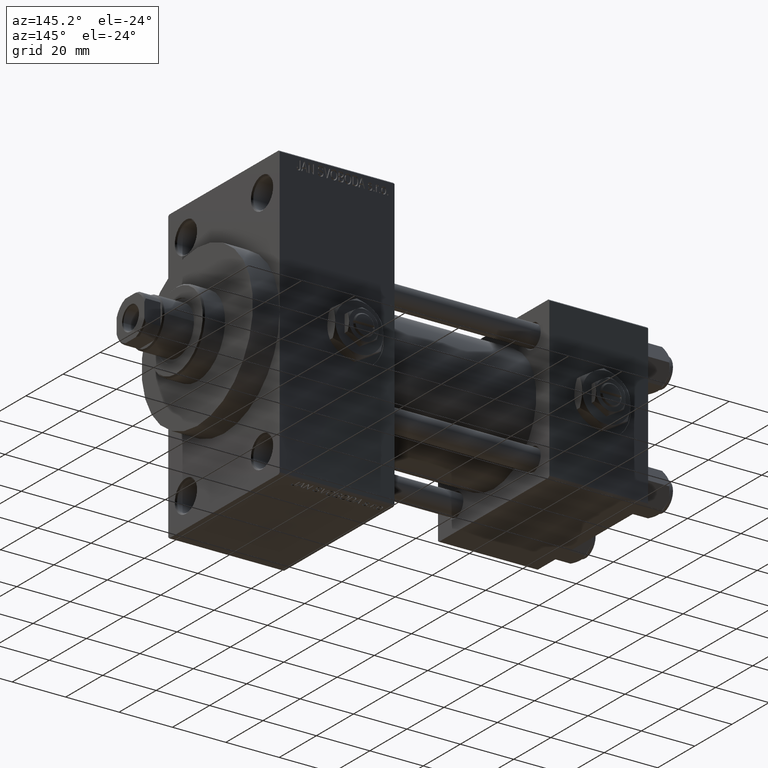
[diagram: clean part render]
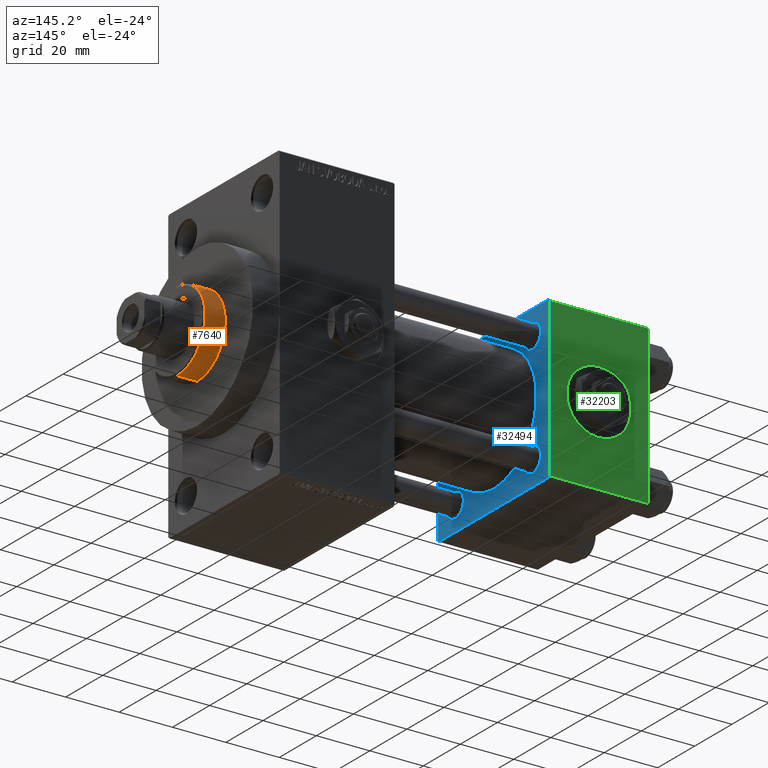
[diagram: same view with three faces highlighted in distinct colors, each labeled with its STEP entity id]
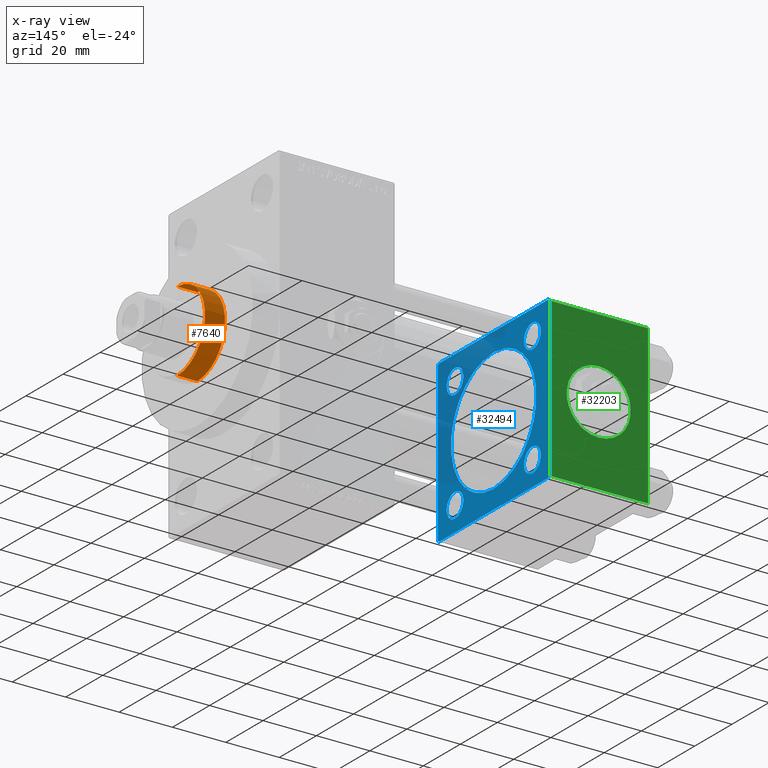
[diagram: x-ray of the same camera — body ghosted, the three highlighted faces saturated]
A machine part, auxiliary view with three faces highlighted in distinct colors.
The next image is the same camera in x-ray (body ghosted, the three faces saturated) — at least one of them is partly hidden behind the body in this view.
Their STEP definitions:

[orange] entity #7640 — the highlighted cylindrical surface (partial cylindrical patch) has radius 15 mm, axis along (-1, 0, 0).
#2689 = FACE_OUTER_BOUND ( 'NONE', #47525, .T. ) ;
#2847 = CARTESIAN_POINT ( 'NONE',  ( 0.000000000000000000, 0.000000000000000000, 43.25999999999999801 ) ) ;
#4192 = DIRECTION ( 'NONE',  ( -0.000000000000000000, -0.000000000000000000, -1.000000000000000000 ) ) ;
#4860 = DIRECTION ( 'NONE',  ( -0.000000000000000000, -0.000000000000000000, -1.000000000000000000 ) ) ;
#7640 = ADVANCED_FACE ( 'NONE', ( #2689 ), #14160, .T. ) ;
#7939 = CARTESIAN_POINT ( 'NONE',  ( 15.00000000000000000, 1.836970198721029589E-15, 51.25999999999999801 ) ) ;
#8867 = ORIENTED_EDGE ( 'NONE', *, *, #21718, .F. ) ;
#9592 = VERTEX_POINT ( 'NONE', #38286 ) ;
#12818 = CARTESIAN_POINT ( 'NONE',  ( -15.00000000000000000, 0.000000000000000000, 50.75999999999998380 ) ) ;
#14160 = CYLINDRICAL_SURFACE ( 'NONE', #29995, 15.00000000000000000 ) ;
#15252 = DIRECTION ( 'NONE',  ( 1.000000000000000000, 0.000000000000000000, 0.000000000000000000 ) ) ;
#17046 = CIRCLE ( 'NONE', #23383, 15.00000000000000000 ) ;
#17065 = CARTESIAN_POINT ( 'NONE',  ( 15.00000000000000000, 1.836970198721029589E-15, 43.25999999999999801 ) ) ;
#18290 = VERTEX_POINT ( 'NONE', #17065 ) ;
#20690 = CIRCLE ( 'NONE', #35817, 15.00000000000000000 ) ;
#21718 = EDGE_CURVE ( 'NONE', #9592, #18290, #30141, .T. ) ;
#23383 = AXIS2_PLACEMENT_3D ( 'NONE', #40250, #41691, #15252 ) ;
#25510 = EDGE_CURVE ( 'NONE', #9592, #45108, #17046, .T. ) ;
#25526 = DIRECTION ( 'NONE',  ( 1.000000000000000000, 0.000000000000000000, 0.000000000000000000 ) ) ;
#28149 = ORIENTED_EDGE ( 'NONE', *, *, #33801, .T. ) ;
#29837 = LINE ( 'NONE', #45037, #33924 ) ;
#29995 = AXIS2_PLACEMENT_3D ( 'NONE', #37551, #33818, #44567 ) ;
#30141 = LINE ( 'NONE', #7939, #40003 ) ;
#33801 = EDGE_CURVE ( 'NONE', #45108, #39523, #29837, .T. ) ;
#33818 = DIRECTION ( 'NONE',  ( -0.000000000000000000, -0.000000000000000000, -1.000000000000000000 ) ) ;
#33924 = VECTOR ( 'NONE', #4860, 1000.000000000000000 ) ;
#33981 = DIRECTION ( 'NONE',  ( 0.000000000000000000, 0.000000000000000000, 1.000000000000000000 ) ) ;
#35817 = AXIS2_PLACEMENT_3D ( 'NONE', #2847, #33981, #25526 ) ;
#35839 = CARTESIAN_POINT ( 'NONE',  ( -15.00000000000000000, 0.000000000000000000, 43.25999999999999801 ) ) ;
#37551 = CARTESIAN_POINT ( 'NONE',  ( 0.000000000000000000, 0.000000000000000000, 51.25999999999999801 ) ) ;
#38286 = CARTESIAN_POINT ( 'NONE',  ( 15.00000000000000000, 1.836970198721029589E-15, 50.75999999999998380 ) ) ;
#39523 = VERTEX_POINT ( 'NONE', #35839 ) ;
#40003 = VECTOR ( 'NONE', #4192, 1000.000000000000000 ) ;
#40250 = CARTESIAN_POINT ( 'NONE',  ( 0.000000000000000000, 0.000000000000000000, 50.75999999999998380 ) ) ;
#40664 = ORIENTED_EDGE ( 'NONE', *, *, #42337, .T. ) ;
#41691 = DIRECTION ( 'NONE',  ( 0.000000000000000000, 0.000000000000000000, -1.000000000000000000 ) ) ;
#42337 = EDGE_CURVE ( 'NONE', #39523, #18290, #20690, .T. ) ;
#42520 = ORIENTED_EDGE ( 'NONE', *, *, #25510, .T. ) ;
#44567 = DIRECTION ( 'NONE',  ( -1.000000000000000000, 0.000000000000000000, 0.000000000000000000 ) ) ;
#45037 = CARTESIAN_POINT ( 'NONE',  ( -15.00000000000000000, 0.000000000000000000, 51.25999999999999801 ) ) ;
#45108 = VERTEX_POINT ( 'NONE', #12818 ) ;
#47525 = EDGE_LOOP ( 'NONE', ( #8867, #42520, #28149, #40664 ) ) ;

[blue] entity #32494 — the highlighted planar face has unit normal (-1, 0, 0).
#115 = CARTESIAN_POINT ( 'NONE',  ( 37.00000000000000000, 20.84999999999999787, -16.35000000000002274 ) ) ;
#148 = DIRECTION ( 'NONE',  ( 0.000000000000000000, 0.000000000000000000, 1.000000000000000000 ) ) ;
#223 = CARTESIAN_POINT ( 'NONE',  ( 37.00000000000000000, 2.146024240737012665E-16, -23.00000000000000000 ) ) ;
#756 = EDGE_CURVE ( 'NONE', #43962, #44596, #33786, .T. ) ;
#965 = VECTOR ( 'NONE', #11256, 1000.000000000000000 ) ;
#1123 = DIRECTION ( 'NONE',  ( -1.000000000000000000, 0.000000000000000000, -0.000000000000000000 ) ) ;
#1128 = CARTESIAN_POINT ( 'NONE',  ( 37.00000000000000000, -29.50000000000000000, -30.00000000000000711 ) ) ;
#1289 = VECTOR ( 'NONE', #22043, 1000.000000000000000 ) ;
#1320 = VERTEX_POINT ( 'NONE', #30084 ) ;
#1482 = CARTESIAN_POINT ( 'NONE',  ( 37.00000000000000000, 29.99999999999999289, 30.00000000000000000 ) ) ;
#1561 = EDGE_CURVE ( 'NONE', #40483, #38965, #17988, .T. ) ;
#1702 = AXIS2_PLACEMENT_3D ( 'NONE', #23913, #5975, #36139 ) ;
#2046 = DIRECTION ( 'NONE',  ( 1.000000000000000000, -0.000000000000000000, 0.000000000000000000 ) ) ;
#2324 = EDGE_CURVE ( 'NONE', #44633, #44053, #35037, .T. ) ;
#2874 = CARTESIAN_POINT ( 'NONE',  ( 37.00000000000000000, 0.000000000000000000, 0.000000000000000000 ) ) ;
#4132 = CARTESIAN_POINT ( 'NONE',  ( 37.00000000000000000, -20.84999999999999076, -16.35000000000002629 ) ) ;
#4403 = VERTEX_POINT ( 'NONE', #30746 ) ;
#4413 = EDGE_LOOP ( 'NONE', ( #15514, #40244 ) ) ;
#4513 = VERTEX_POINT ( 'NONE', #10547 ) ;
#5229 = EDGE_CURVE ( 'NONE', #4403, #43962, #16844, .T. ) ;
#5380 = CARTESIAN_POINT ( 'NONE',  ( 37.00000000000000000, -29.50000000000001066, -30.00000000000000711 ) ) ;
#5975 = DIRECTION ( 'NONE',  ( -1.000000000000000000, 0.000000000000000000, -0.000000000000000000 ) ) ;
#6618 = FACE_BOUND ( 'NONE', #39178, .T. ) ;
#6835 = AXIS2_PLACEMENT_3D ( 'NONE', #33755, #37977, #26263 ) ;
#6919 = EDGE_CURVE ( 'NONE', #44596, #44633, #25541, .T. ) ;
#7151 = CARTESIAN_POINT ( 'NONE',  ( 37.00000000000000000, -20.84999999999999076, 20.85000000000000497 ) ) ;
#7266 = LINE ( 'NONE', #25965, #965 ) ;
#7288 = CARTESIAN_POINT ( 'NONE',  ( 37.00000000000000000, -20.84999999999999076, 20.85000000000000497 ) ) ;
#7405 = CARTESIAN_POINT ( 'NONE',  ( 37.00000000000000000, 20.84999999999999787, -20.85000000000000142 ) ) ;
#7814 = ORIENTED_EDGE ( 'NONE', *, *, #10217, .T. ) ;
#7817 = CIRCLE ( 'NONE', #48438, 4.499999999999976019 ) ;
#7859 = DIRECTION ( 'NONE',  ( 1.000000000000000000, -0.000000000000000000, 0.000000000000000000 ) ) ;
#7879 = DIRECTION ( 'NONE',  ( 0.000000000000000000, 0.000000000000000000, 1.000000000000000000 ) ) ;
#7903 = CARTESIAN_POINT ( 'NONE',  ( 37.00000000000000000, -20.84999999999999076, 25.34999999999998010 ) ) ;
#7905 = CARTESIAN_POINT ( 'NONE',  ( 37.00000000000000000, 29.49999999999997868, -30.00000000000000000 ) ) ;
#8034 = ORIENTED_EDGE ( 'NONE', *, *, #38137, .F. ) ;
#8590 = AXIS2_PLACEMENT_3D ( 'NONE', #28723, #2046, #10524 ) ;
#9648 = EDGE_CURVE ( 'NONE', #49222, #30529, #48374, .T. ) ;
#10044 = AXIS2_PLACEMENT_3D ( 'NONE', #2874, #18087, #17350 ) ;
#10217 = EDGE_CURVE ( 'NONE', #4513, #10852, #7817, .T. ) ;
#10524 = DIRECTION ( 'NONE',  ( 0.000000000000000000, 0.000000000000000000, 1.000000000000000000 ) ) ;
#10547 = CARTESIAN_POINT ( 'NONE',  ( 37.00000000000000000, -20.84999999999999076, 16.35000000000002629 ) ) ;
#10852 = VERTEX_POINT ( 'NONE', #7903 ) ;
#11063 = ORIENTED_EDGE ( 'NONE', *, *, #2324, .T. ) ;
#11205 = VERTEX_POINT ( 'NONE', #18460 ) ;
#11209 = DIRECTION ( 'NONE',  ( 0.000000000000000000, -0.7071067811865474617, 0.7071067811865474617 ) ) ;
#11256 = DIRECTION ( 'NONE',  ( 0.000000000000000000, -1.000000000000000000, -1.156482317317871725E-16 ) ) ;
#12383 = VERTEX_POINT ( 'NONE', #33723 ) ;
#12416 = ORIENTED_EDGE ( 'NONE', *, *, #47742, .T. ) ;
#13527 = ORIENTED_EDGE ( 'NONE', *, *, #756, .T. ) ;
#14299 = CIRCLE ( 'NONE', #23839, 23.00000000000000000 ) ;
#14876 = ORIENTED_EDGE ( 'NONE', *, *, #18809, .T. ) ;
#15085 = CARTESIAN_POINT ( 'NONE',  ( 37.00000000000000000, -2.602085213965210642E-15, 0.000000000000000000 ) ) ;
#15173 = CARTESIAN_POINT ( 'NONE',  ( 37.00000000000000000, 29.49999999999999289, 30.00000000000000000 ) ) ;
#15514 = ORIENTED_EDGE ( 'NONE', *, *, #47901, .T. ) ;
#16338 = DIRECTION ( 'NONE',  ( 0.000000000000000000, 0.000000000000000000, 1.000000000000000000 ) ) ;
#16384 = VECTOR ( 'NONE', #20582, 1000.000000000000000 ) ;
#16537 = CARTESIAN_POINT ( 'NONE',  ( 37.00000000000000000, 20.84999999999999787, 20.85000000000000142 ) ) ;
#16844 = LINE ( 'NONE', #35545, #16384 ) ;
#17350 = DIRECTION ( 'NONE',  ( -0.000000000000000000, 0.000000000000000000, 1.000000000000000000 ) ) ;
#17589 = FACE_BOUND ( 'NONE', #32140, .T. ) ;
#17893 = CIRCLE ( 'NONE', #24241, 4.499999999999976019 ) ;
#17988 = CIRCLE ( 'NONE', #6835, 4.499999999999976019 ) ;
#18017 = VECTOR ( 'NONE', #32045, 1000.000000000000114 ) ;
#18087 = DIRECTION ( 'NONE',  ( -1.000000000000000000, 0.000000000000000000, -0.000000000000000000 ) ) ;
#18460 = CARTESIAN_POINT ( 'NONE',  ( 37.00000000000000000, -2.602085213965210642E-15, 23.00000000000000000 ) ) ;
#18809 = EDGE_CURVE ( 'NONE', #38965, #40483, #43881, .T. ) ;
#19559 = DIRECTION ( 'NONE',  ( 0.000000000000000000, 0.000000000000000000, 1.000000000000000000 ) ) ;
#20083 = CARTESIAN_POINT ( 'NONE',  ( 37.00000000000000000, 20.84999999999999787, 20.85000000000000142 ) ) ;
#20493 = CARTESIAN_POINT ( 'NONE',  ( 37.00000000000000000, 20.84999999999999787, 16.35000000000002274 ) ) ;
#20573 = EDGE_LOOP ( 'NONE', ( #12416, #25697 ) ) ;
#20582 = DIRECTION ( 'NONE',  ( 0.000000000000000000, -1.000000000000000000, -1.156482317317871725E-16 ) ) ;
#21077 = FACE_BOUND ( 'NONE', #29907, .T. ) ;
#21173 = EDGE_CURVE ( 'NONE', #49222, #44053, #7266, .T. ) ;
#21408 = ORIENTED_EDGE ( 'NONE', *, *, #28431, .T. ) ;
#21812 = FACE_BOUND ( 'NONE', #20573, .T. ) ;
#22043 = DIRECTION ( 'NONE',  ( 0.000000000000000000, 0.000000000000000000, -1.000000000000000000 ) ) ;
#22090 = EDGE_LOOP ( 'NONE', ( #32002, #47491, #8034, #21408, #24223, #13527, #27729, #11063 ) ) ;
#22466 = AXIS2_PLACEMENT_3D ( 'NONE', #20083, #1123, #16338 ) ;
#22693 = CARTESIAN_POINT ( 'NONE',  ( 37.00000000000000000, -20.84999999999999076, -25.34999999999998010 ) ) ;
#23281 = EDGE_CURVE ( 'NONE', #41015, #29605, #27285, .T. ) ;
#23839 = AXIS2_PLACEMENT_3D ( 'NONE', #15085, #7859, #19559 ) ;
#23913 = CARTESIAN_POINT ( 'NONE',  ( 37.00000000000000000, -20.84999999999999076, -20.85000000000000497 ) ) ;
#24007 = DIRECTION ( 'NONE',  ( -1.000000000000000000, 0.000000000000000000, -0.000000000000000000 ) ) ;
#24223 = ORIENTED_EDGE ( 'NONE', *, *, #5229, .T. ) ;
#24241 = AXIS2_PLACEMENT_3D ( 'NONE', #46576, #34613, #46834 ) ;
#25541 = LINE ( 'NONE', #48480, #1289 ) ;
#25697 = ORIENTED_EDGE ( 'NONE', *, *, #29498, .T. ) ;
#25918 = CARTESIAN_POINT ( 'NONE',  ( 37.00000000000000000, 29.99999999999999289, -29.50000000000000000 ) ) ;
#25965 = CARTESIAN_POINT ( 'NONE',  ( 37.00000000000000000, 29.99999999999999289, -30.00000000000000000 ) ) ;
#26102 = DIRECTION ( 'NONE',  ( -1.000000000000000000, 0.000000000000000000, -0.000000000000000000 ) ) ;
#26263 = DIRECTION ( 'NONE',  ( 0.000000000000000000, 0.000000000000000000, 1.000000000000000000 ) ) ;
#26812 = DIRECTION ( 'NONE',  ( -0.000000000000000000, 0.7071067811865574537, 0.7071067811865376918 ) ) ;
#27285 = CIRCLE ( 'NONE', #40850, 4.499999999999976019 ) ;
#27729 = ORIENTED_EDGE ( 'NONE', *, *, #6919, .T. ) ;
#28050 = AXIS2_PLACEMENT_3D ( 'NONE', #7405, #26102, #148 ) ;
#28431 = EDGE_CURVE ( 'NONE', #12383, #4403, #45112, .T. ) ;
#28532 = VECTOR ( 'NONE', #31649, 1000.000000000000000 ) ;
#28723 = CARTESIAN_POINT ( 'NONE',  ( 37.00000000000000000, -2.602085213965210642E-15, 0.000000000000000000 ) ) ;
#29498 = EDGE_CURVE ( 'NONE', #41302, #1320, #17893, .T. ) ;
#29605 = VERTEX_POINT ( 'NONE', #20493 ) ;
#29742 = DIRECTION ( 'NONE',  ( -1.000000000000000000, 0.000000000000000000, -0.000000000000000000 ) ) ;
#29867 = VECTOR ( 'NONE', #30056, 1000.000000000000114 ) ;
#29907 = EDGE_LOOP ( 'NONE', ( #30932, #49047 ) ) ;
#30056 = DIRECTION ( 'NONE',  ( -0.000000000000000000, -0.7071067811865474617, -0.7071067811865474617 ) ) ;
#30069 = VECTOR ( 'NONE', #26812, 999.9999999999998863 ) ;
#30084 = CARTESIAN_POINT ( 'NONE',  ( 37.00000000000000000, 20.84999999999999787, -25.34999999999997655 ) ) ;
#30529 = VERTEX_POINT ( 'NONE', #35713 ) ;
#30746 = CARTESIAN_POINT ( 'NONE',  ( 37.00000000000000000, 29.49999999999999289, 30.00000000000000000 ) ) ;
#30932 = ORIENTED_EDGE ( 'NONE', *, *, #37866, .F. ) ;
#31332 = EDGE_CURVE ( 'NONE', #10852, #4513, #47395, .T. ) ;
#31497 = ORIENTED_EDGE ( 'NONE', *, *, #31332, .T. ) ;
#31649 = DIRECTION ( 'NONE',  ( 0.000000000000000000, 0.000000000000000000, -1.000000000000000000 ) ) ;
#32002 = ORIENTED_EDGE ( 'NONE', *, *, #21173, .F. ) ;
#32045 = DIRECTION ( 'NONE',  ( 0.000000000000000000, 0.7071067811865474617, -0.7071067811865474617 ) ) ;
#32140 = EDGE_LOOP ( 'NONE', ( #7814, #31497 ) ) ;
#32494 = ADVANCED_FACE ( 'NONE', ( #6618, #21812, #17589, #37016, #21077, #36290 ), #32793, .F. ) ;
#32793 = PLANE ( 'NONE',  #10044 ) ;
#33723 = CARTESIAN_POINT ( 'NONE',  ( 37.00000000000000000, 29.99999999999999289, 29.50000000000000000 ) ) ;
#33755 = CARTESIAN_POINT ( 'NONE',  ( 37.00000000000000000, -20.84999999999999076, -20.85000000000000497 ) ) ;
#33786 = LINE ( 'NONE', #48995, #29867 ) ;
#34613 = DIRECTION ( 'NONE',  ( -1.000000000000000000, 0.000000000000000000, -0.000000000000000000 ) ) ;
#35037 = LINE ( 'NONE', #5380, #18017 ) ;
#35133 = LINE ( 'NONE', #1482, #28532 ) ;
#35545 = CARTESIAN_POINT ( 'NONE',  ( 37.00000000000000000, 29.99999999999999289, 30.00000000000000000 ) ) ;
#35680 = CIRCLE ( 'NONE', #8590, 23.00000000000000000 ) ;
#35713 = CARTESIAN_POINT ( 'NONE',  ( 37.00000000000000000, 29.99999999999999289, -29.50000000000000000 ) ) ;
#36139 = DIRECTION ( 'NONE',  ( 0.000000000000000000, 0.000000000000000000, 1.000000000000000000 ) ) ;
#36290 = FACE_OUTER_BOUND ( 'NONE', #22090, .T. ) ;
#36377 = CARTESIAN_POINT ( 'NONE',  ( 37.00000000000000000, -30.00000000000000000, -29.50000000000001776 ) ) ;
#37016 = FACE_BOUND ( 'NONE', #4413, .T. ) ;
#37562 = CARTESIAN_POINT ( 'NONE',  ( 37.00000000000000000, -29.49999999999998579, 29.99999999999999289 ) ) ;
#37866 = EDGE_CURVE ( 'NONE', #11205, #48867, #35680, .T. ) ;
#37977 = DIRECTION ( 'NONE',  ( -1.000000000000000000, 0.000000000000000000, -0.000000000000000000 ) ) ;
#38137 = EDGE_CURVE ( 'NONE', #12383, #30529, #35133, .T. ) ;
#38965 = VERTEX_POINT ( 'NONE', #22693 ) ;
#39106 = CARTESIAN_POINT ( 'NONE',  ( 37.00000000000000000, -30.00000000000000000, 29.49999999999999289 ) ) ;
#39178 = EDGE_LOOP ( 'NONE', ( #14876, #48202 ) ) ;
#39439 = AXIS2_PLACEMENT_3D ( 'NONE', #7151, #49262, #7879 ) ;
#40244 = ORIENTED_EDGE ( 'NONE', *, *, #23281, .T. ) ;
#40483 = VERTEX_POINT ( 'NONE', #4132 ) ;
#40850 = AXIS2_PLACEMENT_3D ( 'NONE', #16537, #24007, #46444 ) ;
#41015 = VERTEX_POINT ( 'NONE', #46280 ) ;
#41198 = DIRECTION ( 'NONE',  ( 0.000000000000000000, 0.000000000000000000, 1.000000000000000000 ) ) ;
#41302 = VERTEX_POINT ( 'NONE', #115 ) ;
#41350 = EDGE_CURVE ( 'NONE', #48867, #11205, #14299, .T. ) ;
#42599 = VECTOR ( 'NONE', #11209, 1000.000000000000114 ) ;
#43178 = CIRCLE ( 'NONE', #28050, 4.499999999999976019 ) ;
#43881 = CIRCLE ( 'NONE', #1702, 4.499999999999976019 ) ;
#43962 = VERTEX_POINT ( 'NONE', #37562 ) ;
#43981 = CIRCLE ( 'NONE', #22466, 4.499999999999976019 ) ;
#44053 = VERTEX_POINT ( 'NONE', #1128 ) ;
#44596 = VERTEX_POINT ( 'NONE', #39106 ) ;
#44633 = VERTEX_POINT ( 'NONE', #36377 ) ;
#45112 = LINE ( 'NONE', #15173, #42599 ) ;
#46280 = CARTESIAN_POINT ( 'NONE',  ( 37.00000000000000000, 20.84999999999999787, 25.34999999999997655 ) ) ;
#46444 = DIRECTION ( 'NONE',  ( 0.000000000000000000, 0.000000000000000000, 1.000000000000000000 ) ) ;
#46576 = CARTESIAN_POINT ( 'NONE',  ( 37.00000000000000000, 20.84999999999999787, -20.85000000000000142 ) ) ;
#46834 = DIRECTION ( 'NONE',  ( 0.000000000000000000, 0.000000000000000000, 1.000000000000000000 ) ) ;
#47395 = CIRCLE ( 'NONE', #39439, 4.499999999999976019 ) ;
#47491 = ORIENTED_EDGE ( 'NONE', *, *, #9648, .T. ) ;
#47742 = EDGE_CURVE ( 'NONE', #1320, #41302, #43178, .T. ) ;
#47901 = EDGE_CURVE ( 'NONE', #29605, #41015, #43981, .T. ) ;
#48202 = ORIENTED_EDGE ( 'NONE', *, *, #1561, .T. ) ;
#48374 = LINE ( 'NONE', #25918, #30069 ) ;
#48438 = AXIS2_PLACEMENT_3D ( 'NONE', #7288, #29742, #41198 ) ;
#48480 = CARTESIAN_POINT ( 'NONE',  ( 37.00000000000000000, -30.00000000000000000, 29.99999999999999289 ) ) ;
#48867 = VERTEX_POINT ( 'NONE', #223 ) ;
#48995 = CARTESIAN_POINT ( 'NONE',  ( 37.00000000000000000, -30.00000000000000000, 29.49999999999999289 ) ) ;
#49047 = ORIENTED_EDGE ( 'NONE', *, *, #41350, .F. ) ;
#49222 = VERTEX_POINT ( 'NONE', #7905 ) ;
#49262 = DIRECTION ( 'NONE',  ( -1.000000000000000000, 0.000000000000000000, -0.000000000000000000 ) ) ;

[green] entity #32203 — the highlighted planar face has unit normal (0, 1, 0).
#1453 = EDGE_CURVE ( 'NONE', #1602, #44723, #11595, .T. ) ;
#1482 = CARTESIAN_POINT ( 'NONE',  ( 37.00000000000000000, 29.99999999999999289, 30.00000000000000000 ) ) ;
#1602 = VERTEX_POINT ( 'NONE', #19040 ) ;
#5373 = DIRECTION ( 'NONE',  ( 0.000000000000000000, 0.000000000000000000, 1.000000000000000000 ) ) ;
#6283 = DIRECTION ( 'NONE',  ( 0.000000000000000000, 1.000000000000000000, 0.000000000000000000 ) ) ;
#6627 = CARTESIAN_POINT ( 'NONE',  ( 37.00000000000000000, 29.99999999999999289, 29.50000000000000000 ) ) ;
#7401 = FACE_BOUND ( 'NONE', #31124, .T. ) ;
#7862 = CARTESIAN_POINT ( 'NONE',  ( 0.000000000000000000, 29.99999999999999289, 29.50000000000000000 ) ) ;
#8185 = AXIS2_PLACEMENT_3D ( 'NONE', #48402, #6283, #22205 ) ;
#8394 = AXIS2_PLACEMENT_3D ( 'NONE', #24303, #39519, #5373 ) ;
#11388 = DIRECTION ( 'NONE',  ( -0.000000000000000000, 1.000000000000000000, 0.000000000000000000 ) ) ;
#11595 = CIRCLE ( 'NONE', #8394, 12.00000000000000178 ) ;
#12199 = DIRECTION ( 'NONE',  ( -1.000000000000000000, 0.000000000000000000, 0.000000000000000000 ) ) ;
#12383 = VERTEX_POINT ( 'NONE', #33723 ) ;
#13215 = DIRECTION ( 'NONE',  ( 0.000000000000000000, 0.000000000000000000, -1.000000000000000000 ) ) ;
#13684 = CARTESIAN_POINT ( 'NONE',  ( 18.50000000000000000, 29.99999999999999289, 12.00000000000000178 ) ) ;
#14380 = ORIENTED_EDGE ( 'NONE', *, *, #17743, .F. ) ;
#16555 = VECTOR ( 'NONE', #21820, 1000.000000000000000 ) ;
#17184 = AXIS2_PLACEMENT_3D ( 'NONE', #49271, #11388, #38526 ) ;
#17743 = EDGE_CURVE ( 'NONE', #44723, #1602, #40833, .T. ) ;
#18096 = LINE ( 'NONE', #6627, #16555 ) ;
#19040 = CARTESIAN_POINT ( 'NONE',  ( 18.50000000000000000, 29.99999999999999289, -12.00000000000000178 ) ) ;
#19104 = PLANE ( 'NONE',  #17184 ) ;
#20072 = EDGE_CURVE ( 'NONE', #25121, #39291, #32154, .T. ) ;
#21820 = DIRECTION ( 'NONE',  ( 1.000000000000000000, 0.000000000000000000, 0.000000000000000000 ) ) ;
#22205 = DIRECTION ( 'NONE',  ( 0.000000000000000000, 0.000000000000000000, 1.000000000000000000 ) ) ;
#22880 = CARTESIAN_POINT ( 'NONE',  ( 0.000000000000000000, 29.99999999999999289, -29.50000000000000000 ) ) ;
#23662 = LINE ( 'NONE', #39117, #31751 ) ;
#24303 = CARTESIAN_POINT ( 'NONE',  ( 18.50000000000000000, 29.99999999999999289, 0.000000000000000000 ) ) ;
#25121 = VERTEX_POINT ( 'NONE', #7862 ) ;
#27139 = ORIENTED_EDGE ( 'NONE', *, *, #40748, .T. ) ;
#28532 = VECTOR ( 'NONE', #31649, 1000.000000000000000 ) ;
#30529 = VERTEX_POINT ( 'NONE', #35713 ) ;
#31124 = EDGE_LOOP ( 'NONE', ( #14380, #40257 ) ) ;
#31649 = DIRECTION ( 'NONE',  ( 0.000000000000000000, 0.000000000000000000, -1.000000000000000000 ) ) ;
#31751 = VECTOR ( 'NONE', #12199, 1000.000000000000000 ) ;
#32154 = LINE ( 'NONE', #47364, #42310 ) ;
#32203 = ADVANCED_FACE ( 'NONE', ( #7401, #38284 ), #19104, .T. ) ;
#33723 = CARTESIAN_POINT ( 'NONE',  ( 37.00000000000000000, 29.99999999999999289, 29.50000000000000000 ) ) ;
#35133 = LINE ( 'NONE', #1482, #28532 ) ;
#35713 = CARTESIAN_POINT ( 'NONE',  ( 37.00000000000000000, 29.99999999999999289, -29.50000000000000000 ) ) ;
#37648 = EDGE_CURVE ( 'NONE', #25121, #12383, #18096, .T. ) ;
#38137 = EDGE_CURVE ( 'NONE', #12383, #30529, #35133, .T. ) ;
#38284 = FACE_OUTER_BOUND ( 'NONE', #40289, .T. ) ;
#38526 = DIRECTION ( 'NONE',  ( 0.000000000000000000, -0.000000000000000000, 1.000000000000000000 ) ) ;
#39117 = CARTESIAN_POINT ( 'NONE',  ( 37.00000000000000000, 29.99999999999999289, -29.50000000000000000 ) ) ;
#39291 = VERTEX_POINT ( 'NONE', #22880 ) ;
#39519 = DIRECTION ( 'NONE',  ( 0.000000000000000000, 1.000000000000000000, 0.000000000000000000 ) ) ;
#39919 = ORIENTED_EDGE ( 'NONE', *, *, #37648, .T. ) ;
#40249 = ORIENTED_EDGE ( 'NONE', *, *, #20072, .F. ) ;
#40257 = ORIENTED_EDGE ( 'NONE', *, *, #1453, .F. ) ;
#40289 = EDGE_LOOP ( 'NONE', ( #44934, #27139, #40249, #39919 ) ) ;
#40748 = EDGE_CURVE ( 'NONE', #30529, #39291, #23662, .T. ) ;
#40833 = CIRCLE ( 'NONE', #8185, 12.00000000000000178 ) ;
#42310 = VECTOR ( 'NONE', #13215, 1000.000000000000000 ) ;
#44723 = VERTEX_POINT ( 'NONE', #13684 ) ;
#44934 = ORIENTED_EDGE ( 'NONE', *, *, #38137, .T. ) ;
#47364 = CARTESIAN_POINT ( 'NONE',  ( 0.000000000000000000, 29.99999999999999289, 30.00000000000000000 ) ) ;
#48402 = CARTESIAN_POINT ( 'NONE',  ( 18.50000000000000000, 29.99999999999999289, 0.000000000000000000 ) ) ;
#49271 = CARTESIAN_POINT ( 'NONE',  ( 37.00000000000000000, 29.99999999999999289, 30.00000000000000000 ) ) ;